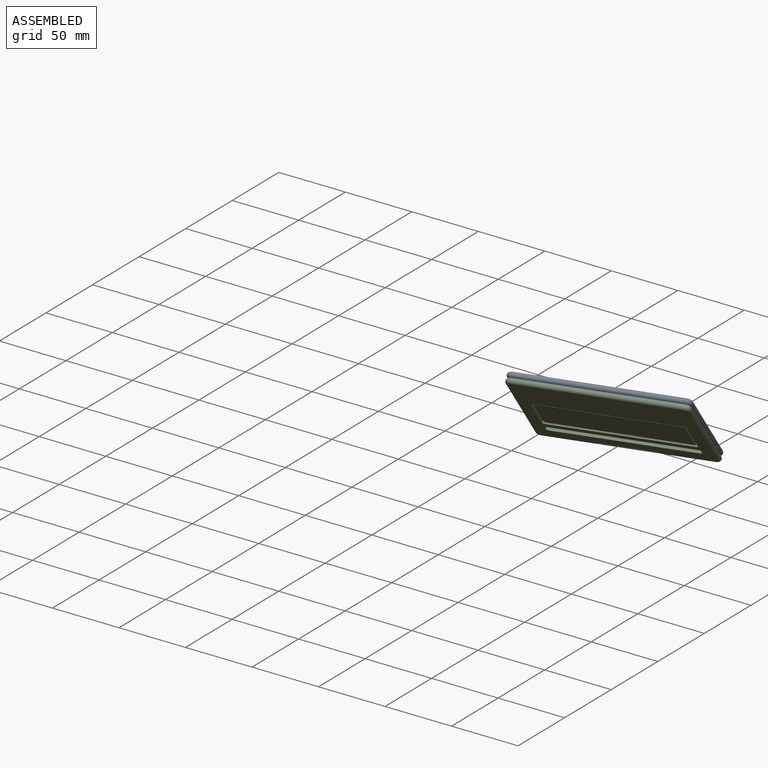
[diagram: assembled view]
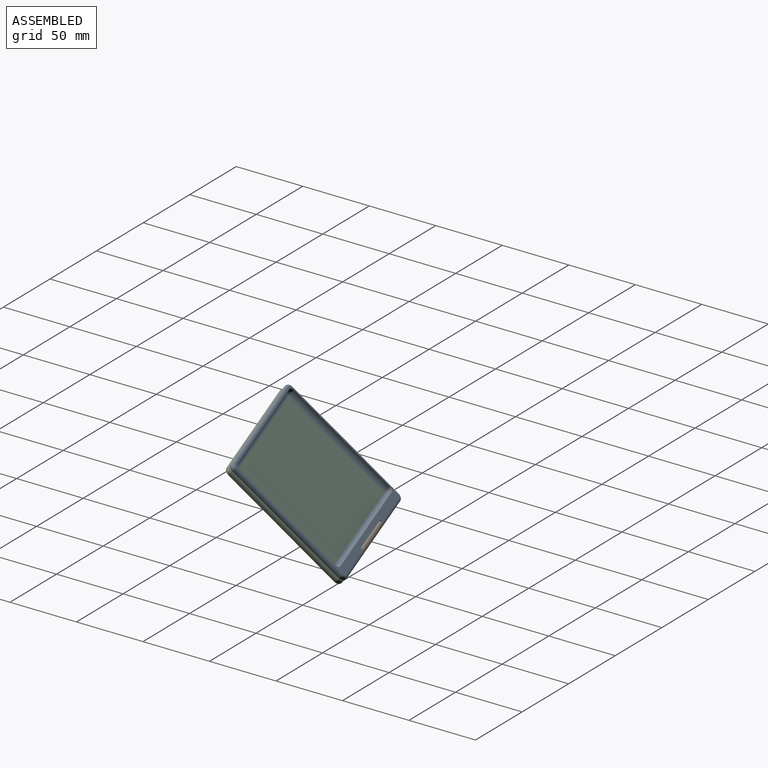
[diagram: assembled view, second angle]
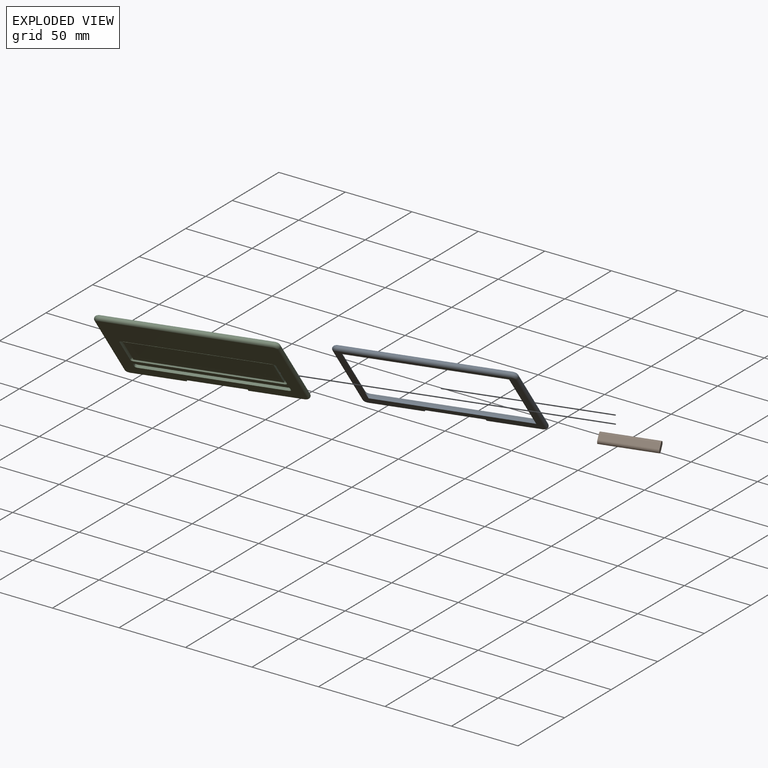
[diagram: exploded view]
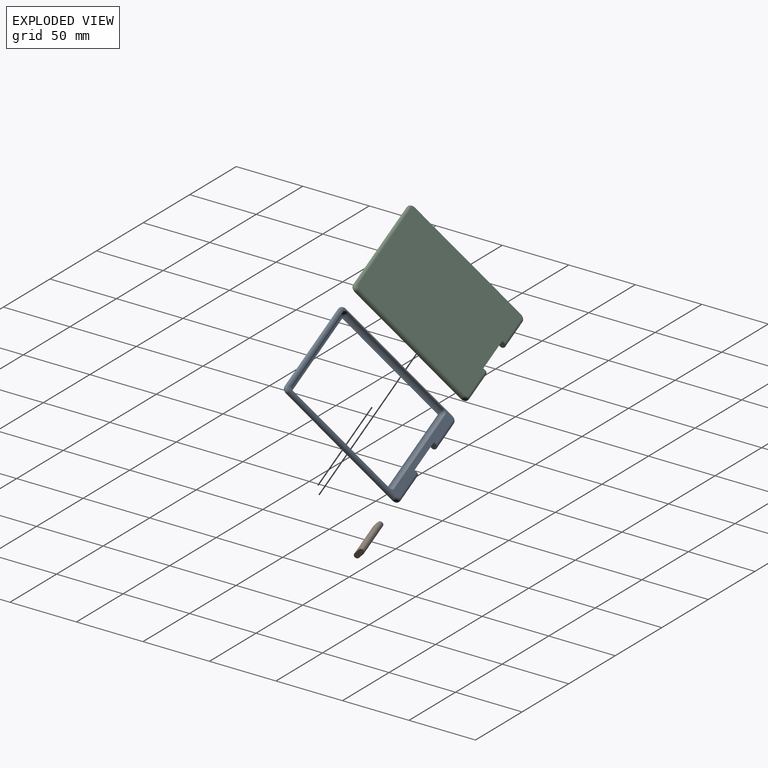
[diagram: exploded view, second angle]
ASSEMBLY  parts=3 mates=2
PART A: 32 faces, bbox 120.7x4x101.7 mm
  f0: cylinder r=2mm len=40mm, axis (1,0,0), area 1.7mm2, adj f28,f29,f30,f31
  f1: cylinder r=2mm len=36mm, axis (-1,0,0), area 226.2mm2, adj f7,f20,f23,f30
  f2: cylinder r=2mm len=36mm, axis (-1,0,0), area 226.2mm2, adj f7,f20,f26,f29
  f3: plane 108x1mm, normal (0,0,-1), area 108mm2, adj f7,f8,f11,f19
  f4: plane 84x1mm, normal (-1,0,0), area 84mm2, adj f7,f8,f9,f15
  f5: plane 108x1mm, normal (0,0,1), area 108mm2, adj f7,f9,f10,f12
  f6: plane 84x1mm, normal (1,0,0), area 84mm2, adj f7,f10,f11,f16
  f7: plane 116x97mm, normal (0,-1,0), area 916.3mm2, adj f1,f2,f3,f4,f5,f6,f8,f9
  f8: cylinder r=3mm len=3mm, axis (0,1,0), area 4.7mm2, adj f3,f4,f7,f17
  f9: cylinder r=3mm len=3mm, axis (0,-1,0), area 4.7mm2, adj f4,f5,f7,f13
  f10: cylinder r=3mm len=3mm, axis (0,1,0), area 4.7mm2, adj f5,f6,f7,f14
  f11: cylinder r=3mm len=3mm, axis (0,-1,0), area 4.7mm2, adj f3,f6,f7,f18
  f12: cylinder r=3mm len=108mm, axis (-1,0,0), area 508.9mm2, adj f5,f13,f14,f20
  f13: sphere r=3mm, area 14.1mm2, adj f9,f12,f15
  f14: sphere r=3mm, area 14.1mm2, adj f10,f12,f16
  f15: cylinder r=3mm len=84mm, axis (0,0,-1), area 395.8mm2, adj f4,f13,f17,f20
  f16: cylinder r=3mm len=84mm, axis (0,0,1), area 395.8mm2, adj f6,f14,f18,f20
  f17: sphere r=3mm, area 14.1mm2, adj f8,f15,f19
  f18: sphere r=3mm, area 14.1mm2, adj f11,f16,f19
  f19: cylinder r=3mm len=108mm, axis (1,0,0), area 508.9mm2, adj f3,f17,f18,f20
  f20: plane 116x97mm, normal (0,1,0), area 2096.6mm2, adj f1,f2,f12,f15,f16,f19,f21,f22
  f21: cylinder r=2mm len=93mm, axis (0,0,1), area 584.3mm2, adj f7,f20,f22,f23
  f22: torus R=2mm, axis (0,-1,0), area 32.3mm2, adj f7,f20,f21,f24
  f23: torus R=2mm, axis (0,-1,0), area 32.3mm2, adj f1,f7,f20,f21
  f24: cylinder r=2mm len=112mm, axis (1,0,0), area 703.7mm2, adj f7,f20,f22,f25
  f25: torus R=2mm, axis (0,-1,0), area 32.3mm2, adj f7,f20,f24,f27
  f26: torus R=2mm, axis (0,-1,0), area 32.3mm2, adj f2,f7,f20,f27
  f27: cylinder r=2mm len=93mm, axis (0,0,-1), area 584.3mm2, adj f7,f20,f25,f26
  f28: plane 40x2mm, normal (0,0,-1), area 80mm2, adj f0,f7,f29,f30
  f29: plane 4x4mm, normal (-1,0,0), area 14.3mm2, adj f0,f2,f7,f20,f28,f31
  f30: plane 4x4mm, normal (1,0,0), area 14.3mm2, adj f0,f1,f7,f20,f28,f31
  f31: plane 40x1.96mm, normal (0,0,-1), area 78.3mm2, adj f0,f20,f29,f30
PART B: 6 faces, bbox 40x8x4 mm
  f0: plane 40x4mm, normal (0,0,1), area 160mm2, adj f2,f3,f4,f5
  f1: plane 40x4mm, normal (0,0,-1), area 160mm2, adj f2,f3,f4,f5
  f2: plane 8x4mm, normal (1,0,0), area 28.6mm2, adj f0,f1,f4,f5
  f3: plane 8x4mm, normal (-1,0,0), area 28.6mm2, adj f0,f1,f4,f5
  f4: cylinder r=2mm len=40mm, axis (1,0,0), area 251.3mm2, adj f0,f1,f2,f3
  f5: cylinder r=2mm len=40mm, axis (1,0,0), area 251.3mm2, adj f0,f1,f2,f3
PART C: 38 faces, bbox 120.7x101.7x4 mm
  f0: plane 116x97mm, normal (0,0,1), area 6620.8mm2, adj f2,f3,f5,f6,f7,f8,f9,f10
  f1: cylinder r=2mm len=40mm, axis (1,0,0), area 1.7mm2, adj f12,f13,f14,f15
  f2: cylinder r=2mm len=36mm, axis (1,0,0), area 226.2mm2, adj f0,f4,f9,f13
  f3: cylinder r=2mm len=36mm, axis (1,0,0), area 226.2mm2, adj f0,f4,f6,f14
  f4: plane 116x97mm, normal (0,0,-1), area 11168.9mm2, adj f2,f3,f5,f6,f7,f8,f9,f10
  f5: cylinder r=2mm len=93mm, axis (0,1,0), area 584.3mm2, adj f0,f4,f6,f7
  f6: torus R=2mm, axis (0,0,-1), area 32.3mm2, adj f0,f3,f4,f5
  f7: torus R=2mm, axis (0,0,-1), area 32.3mm2, adj f0,f4,f5,f8
  f8: cylinder r=2mm len=112mm, axis (-1,0,0), area 703.7mm2, adj f0,f4,f7,f10
  f9: torus R=2mm, axis (0,0,-1), area 32.3mm2, adj f0,f2,f4,f11
  f10: torus R=2mm, axis (0,0,-1), area 32.3mm2, adj f0,f4,f8,f11
  f11: cylinder r=2mm len=93mm, axis (0,-1,0), area 584.3mm2, adj f0,f4,f9,f10
  f12: plane 40x2mm, normal (0,1,0), area 80mm2, adj f0,f1,f13,f14
  f13: plane 4x4mm, normal (-1,0,0), area 14.3mm2, adj f0,f1,f2,f4,f12,f15
  f14: plane 4x4mm, normal (1,0,0), area 14.3mm2, adj f0,f1,f3,f4,f12,f15
  f15: plane 40x1.96mm, normal (0,1,0), area 78.3mm2, adj f1,f4,f13,f14
  f16: plane 97.08x2mm, normal (0,1,0), area 194.2mm2, adj f0,f20,f22,f24
  f17: plane 3.31x2mm, normal (-1,0,0), area 6.6mm2, adj f0,f20,f21,f22
  f18: plane 97.08x2mm, normal (0,-1,0), area 194.2mm2, adj f0,f20,f21,f23
  f19: plane 3.31x2mm, normal (1,0,0), area 6.6mm2, adj f0,f20,f23,f24
  f20: plane 101.08x7.31mm, normal (0,0,1), area 735.9mm2, adj f16,f17,f18,f19,f21,f22,f23,f24
  f21: cylinder r=2mm len=2mm, axis (0,0,1), area 6.3mm2, adj f0,f17,f18,f20
  f22: cylinder r=2mm len=2mm, axis (0,0,1), area 6.3mm2, adj f0,f16,f17,f20
  f23: cylinder r=2mm len=2mm, axis (0,0,-1), area 6.3mm2, adj f0,f18,f19,f20
  f24: cylinder r=2mm len=2mm, axis (0,0,-1), area 6.3mm2, adj f0,f16,f19,f20
  f25: sphere r=2mm, area 6.3mm2, adj f0,f26,f27
  f26: cylinder r=2mm len=97.08mm, axis (1,0,0), area 305mm2, adj f0,f25,f28,f33
  f27: cylinder r=2mm len=33.74mm, axis (0,-1,0), area 106mm2, adj f0,f25,f29,f36
  f28: sphere r=2mm, area 6.3mm2, adj f0,f26,f30
  f29: sphere r=2mm, area 8.6mm2, adj f0,f27,f31
  f30: cylinder r=2mm len=33.74mm, axis (0,1,0), area 106mm2, adj f0,f28,f32,f34
  f31: cylinder r=2mm len=97.08mm, axis (-1,0,0), area 305mm2, adj f0,f29,f32,f35
  f32: sphere r=2mm, area 4mm2, adj f0,f30,f31
  f33: plane 97.08x1.5mm, normal (0,-1,0), area 145.6mm2, adj f26,f34,f36,f37
  f34: plane 33.74x1.5mm, normal (1,0,0), area 50.6mm2, adj f30,f33,f35,f37
  f35: plane 97.08x1.5mm, normal (0,1,0), area 145.6mm2, adj f31,f34,f36,f37
  f36: plane 33.74x1.5mm, normal (-1,0,0), area 50.6mm2, adj f27,f33,f35,f37
  f37: plane 97.08x33.74mm, normal (0,0,1), area 3276mm2, adj f33,f34,f35,f36
PLACE A rot(axis=(-0.07,0.39,-0.92),164.1deg) t=(-38.69,151.1,-50.77)mm
PLACE B rot(axis=(0.14,-0.91,-0.39),171.7deg) t=(-28.49,132.31,116.13)mm
PLACE C rot(axis=(-0.15,0.92,-0.37),174.7deg) t=(-59.71,222.78,34.74)mm
MATE revolute B.f4 <-> A.f1  axis (-0.95,-0.31,0.02) through (-57.16,133.36,32.52)mm
MATE revolute B.f5 <-> C.f2  axis (-0.95,-0.31,0.02) through (-56.38,130.73,29.61)mm
